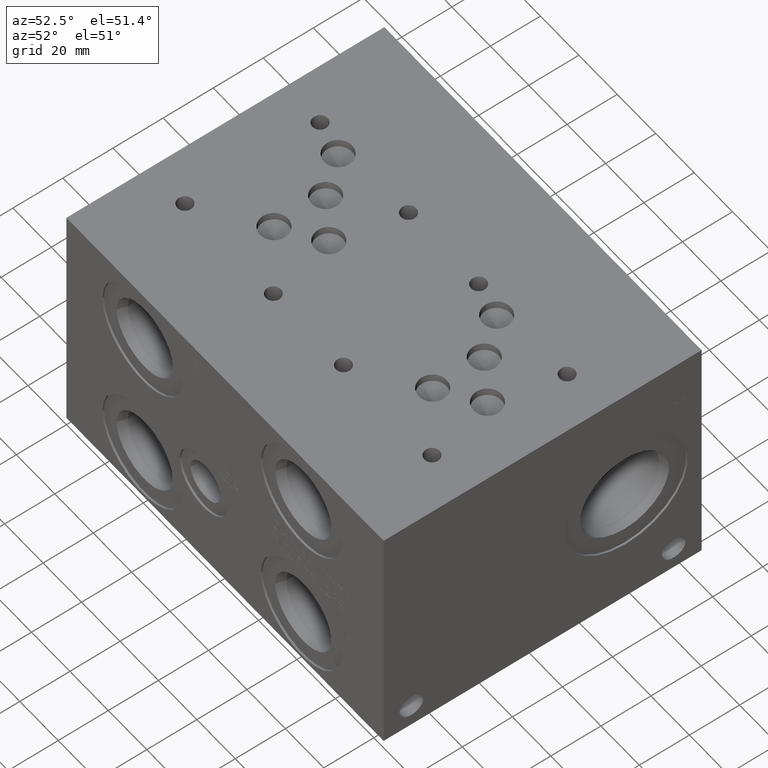
[diagram: clean part render]
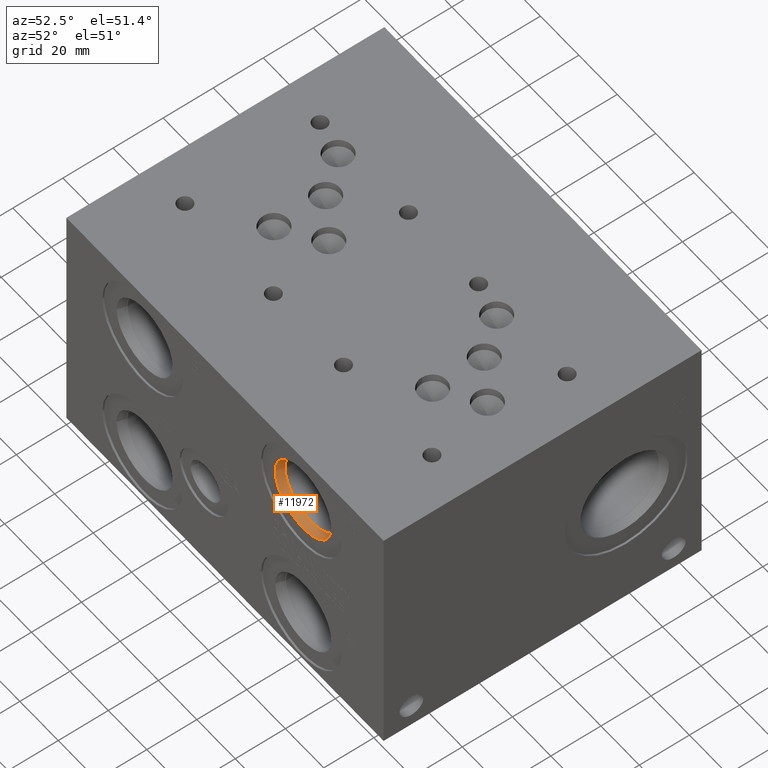
[diagram: same view with one face highlighted and labeled with its STEP entity id]
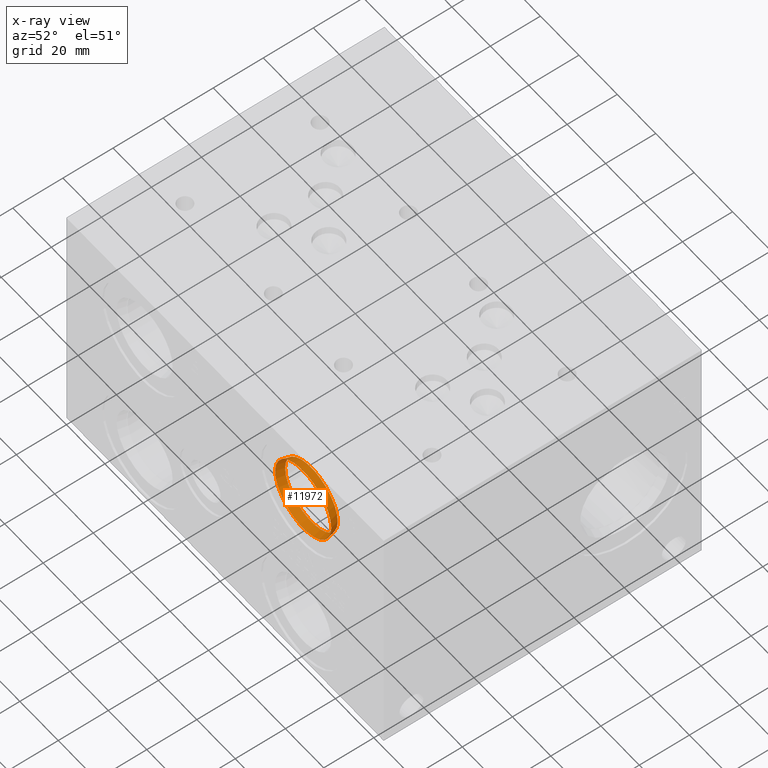
[diagram: x-ray of the same camera — body ghosted, the highlighted face saturated]
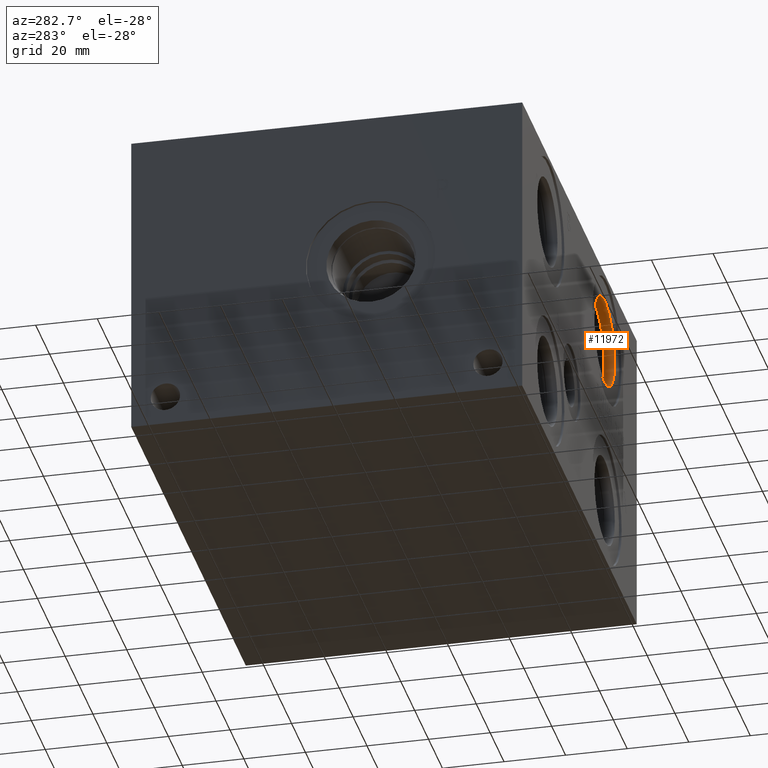
[diagram: same view with one face highlighted and labeled with its STEP entity id]
A machine part, auxiliary view. The second image highlights one B-rep face of the part: STEP entity #11972.
The next image is the same camera in x-ray: the body ghosted, the highlighted face saturated — about 0% of this face is hidden behind the body in this view.
A second angle (auxiliary view) of the same face is appended — the face is thin or edge-on in the first view.
In plain terms, the highlighted conical surface has half-angle 15.007 deg.
Its self-contained STEP definition (entity closure, byte-faithful):
#96=CONICAL_SURFACE('',#12527,14.15415,0.261922137297762);
#216=CIRCLE('',#12525,14.5923);
#217=CIRCLE('',#12526,14.5923);
#218=CIRCLE('',#12528,13.716);
#219=CIRCLE('',#12529,13.716);
#1491=FACE_OUTER_BOUND('',#2169,.T.);
#2169=EDGE_LOOP('',(#10099,#10100,#10101,#10102,#10103,#10104));
#3312=LINE('',#20352,#4400);
#4400=VECTOR('',#14673,14.15415);
#5445=VERTEX_POINT('',#20346);
#5446=VERTEX_POINT('',#20347);
#5447=VERTEX_POINT('',#20351);
#5448=VERTEX_POINT('',#20353);
#7051=EDGE_CURVE('',#5445,#5446,#216,.T.);
#7052=EDGE_CURVE('',#5446,#5445,#217,.T.);
#7053=EDGE_CURVE('',#5446,#5447,#3312,.T.);
#7054=EDGE_CURVE('',#5447,#5448,#218,.T.);
#7055=EDGE_CURVE('',#5448,#5447,#219,.T.);
#10099=ORIENTED_EDGE('',*,*,#7051,.F.);
#10100=ORIENTED_EDGE('',*,*,#7052,.F.);
#10101=ORIENTED_EDGE('',*,*,#7053,.T.);
#10102=ORIENTED_EDGE('',*,*,#7054,.T.);
#10103=ORIENTED_EDGE('',*,*,#7055,.T.);
#10104=ORIENTED_EDGE('',*,*,#7053,.F.);
#11972=ADVANCED_FACE('',(#1491),#96,.F.);
#12525=AXIS2_PLACEMENT_3D('',#20348,#14667,#14668);
#12526=AXIS2_PLACEMENT_3D('',#20349,#14669,#14670);
#12527=AXIS2_PLACEMENT_3D('',#20350,#14671,#14672);
#12528=AXIS2_PLACEMENT_3D('',#20354,#14674,#14675);
#12529=AXIS2_PLACEMENT_3D('',#20355,#14676,#14677);
#14667=DIRECTION('center_axis',(0.,1.,0.));
#14668=DIRECTION('ref_axis',(1.,0.,0.));
#14669=DIRECTION('center_axis',(0.,1.,0.));
#14670=DIRECTION('ref_axis',(1.,0.,0.));
#14671=DIRECTION('center_axis',(0.,-1.,0.));
#14672=DIRECTION('ref_axis',(1.,0.,0.));
#14673=DIRECTION('',(0.258937610063226,0.965894049104116,-3.17107115342796E-17));
#14674=DIRECTION('center_axis',(0.,1.,0.));
#14675=DIRECTION('ref_axis',(1.,0.,0.));
#14676=DIRECTION('center_axis',(0.,1.,0.));
#14677=DIRECTION('ref_axis',(1.,0.,0.));
#20346=CARTESIAN_POINT('',(136.8171,0.7874,79.375));
#20347=CARTESIAN_POINT('',(107.6325,0.7874,79.375));
#20348=CARTESIAN_POINT('Origin',(122.2248,0.7874,79.375));
#20349=CARTESIAN_POINT('Origin',(122.2248,0.7874,79.375));
#20350=CARTESIAN_POINT('Origin',(122.2248,2.42179555,79.375));
#20351=CARTESIAN_POINT('',(108.5088,4.0561911,79.375));
#20352=CARTESIAN_POINT('',(108.07065,2.42179555,79.375));
#20353=CARTESIAN_POINT('',(135.9408,4.0561911,79.375));
#20354=CARTESIAN_POINT('Origin',(122.2248,4.0561911,79.375));
#20355=CARTESIAN_POINT('Origin',(122.2248,4.0561911,79.375));